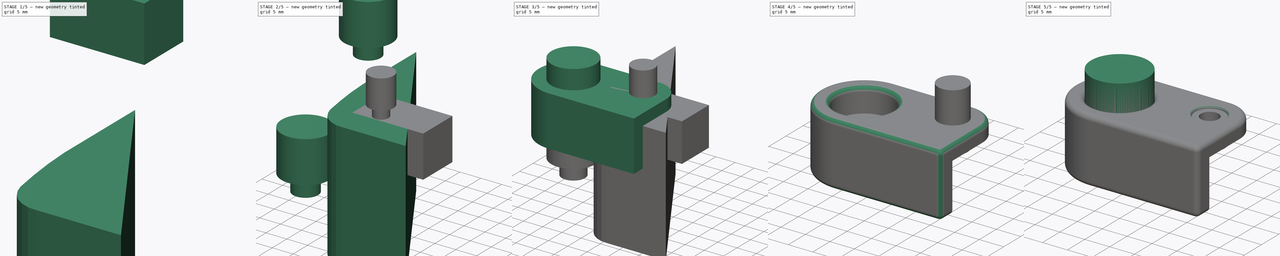
[diagram: build sequence overview — one tinted view per stage of 5, left to right]
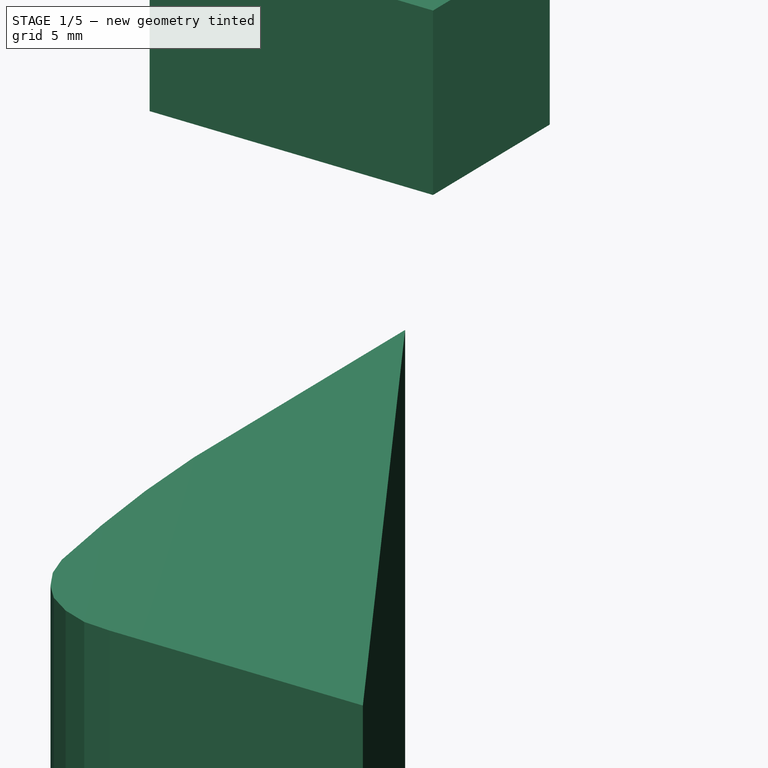
[diagram: stage 1 of 5 — iso view after this stage's code; geometry added in this stage tinted green]
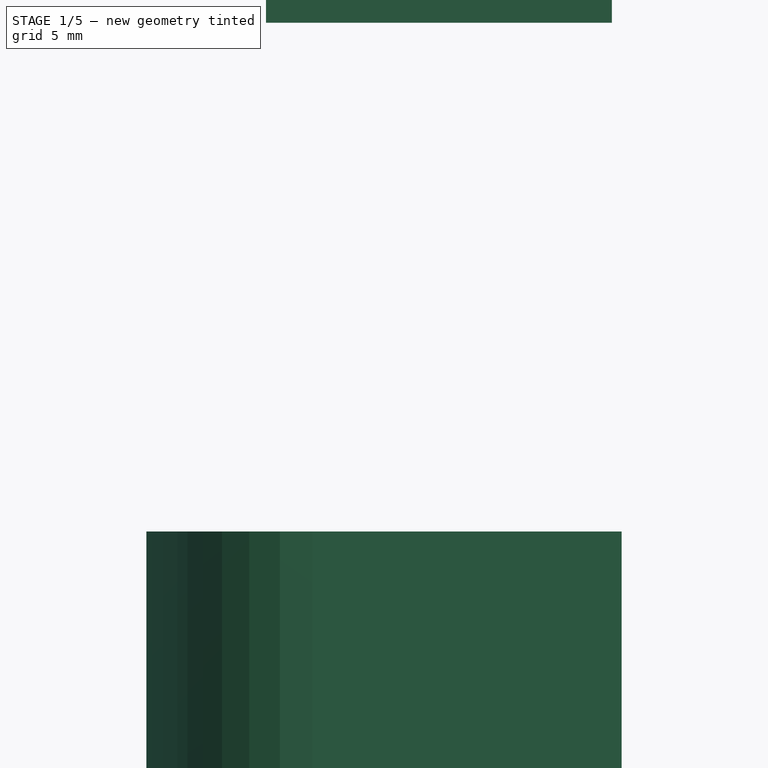
[diagram: stage 1 of 5 — front view after this stage's code; geometry added in this stage tinted green]
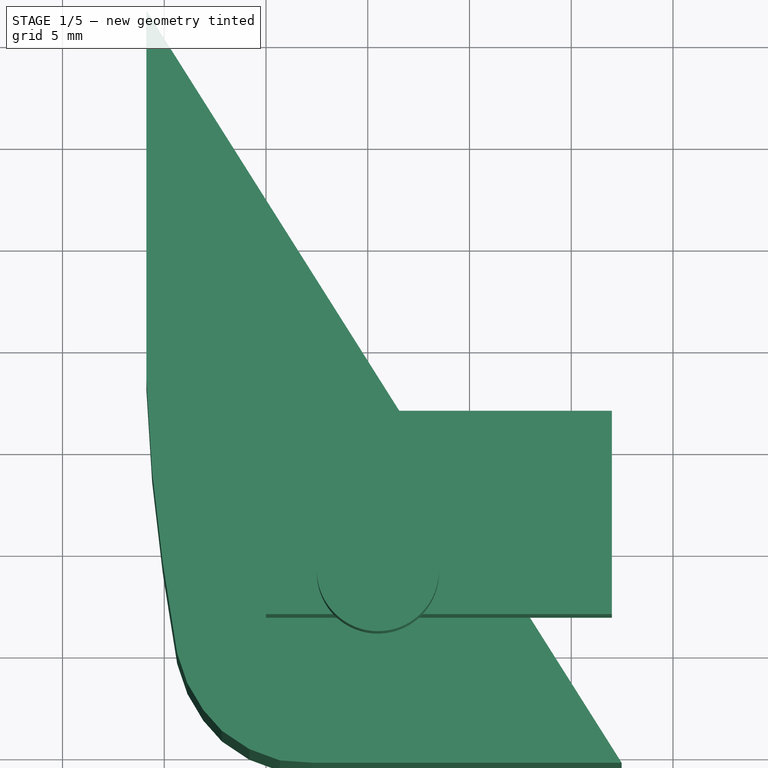
[diagram: stage 1 of 5 — top view after this stage's code; geometry added in this stage tinted green]
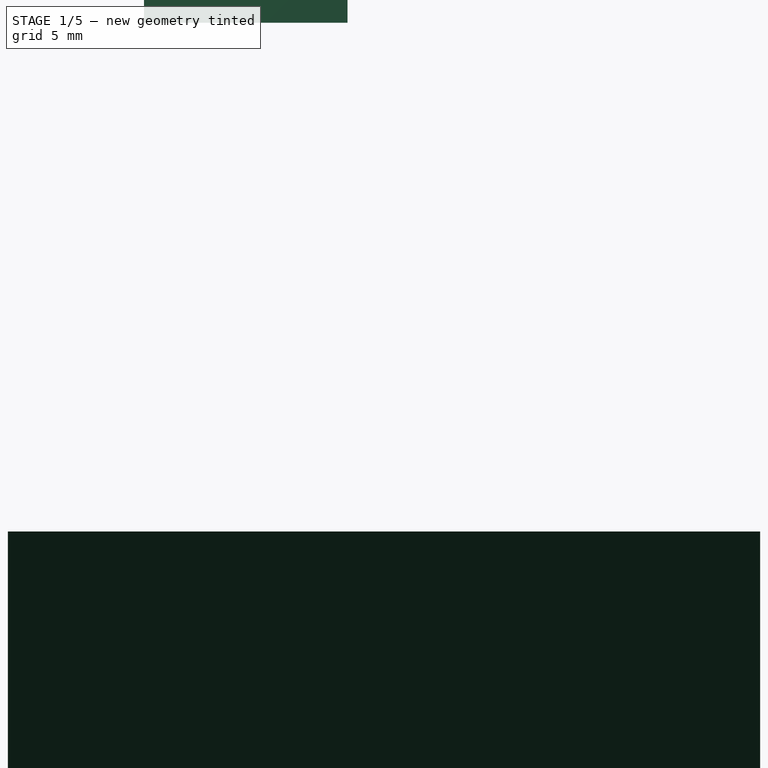
[diagram: stage 1 of 5 — right view after this stage's code; geometry added in this stage tinted green]
FCSTD DOCUMENT  (FreeCAD 0.20R29410 (Git))
Label: antennaHolder2022_11_15
License: All rights reserved
LicenseURL: http://en.wikipedia.org/wiki/All_rights_reserved
objects: Part::Cylinder×10, Part::MultiFuse×8, Part::Fillet×5, Part::Cut×3, Part::Box×2, Part::Feature×1, Sketcher::SketchObject×1, PartDesign::Pad×1, PartDesign::AdditiveBox×1, PartDesign::Body×1
note: 35 computed .brp shape members not serialized (recipe doc carries the construction recipe); baked Part::Feature solids carry a one-line shape summary decoded from their .brp

FEATURE [Sketcher::SketchObject] Sketch
  FullyConstrained = true
  MapMode = 5
  Support = -> [XY_Plane]
  sketch-geometry (24):
    g0: GeomPoint X=-15.8769 Y=6.2818 Z=0
    g1: GeomPoint X=-15.8769 Y=-11.8438 Z=0
    g2: GeomPoint X=-15.5941 Y=-16.3746 Z=0
    g3: GeomPoint X=-15.0711 Y=-20.8575 Z=0
    g4: GeomPoint X=-14.3647 Y=-25.3051 Z=0
    g5: GeomPoint X=-13.8626 Y=-26.7835 Z=0
    g6: GeomPoint X=-13.0815 Y=-28.0945 Z=0
    g7: GeomPoint X=-12.161 Y=-29.1266 Z=0
    g8: GeomPoint X=-10.8221 Y=-30.0192 Z=0
    g9: GeomPoint X=-9.31585 Y=-30.5771 Z=0
    g10: GeomPoint X=-7.72589 Y=-30.6886 Z=0
    g11: GeomPoint X=7.47631 Y=-30.6886 Z=0
    g12: LineSegment StartX=-15.5941 StartY=-16.3746 StartZ=0 EndX=-15.0711 EndY=-20.8575 EndZ=0
    g13: LineSegment StartX=-15.0711 StartY=-20.8575 StartZ=0 EndX=-14.3647 EndY=-25.3051 EndZ=0
    g14: LineSegment StartX=-14.3647 StartY=-25.3051 StartZ=0 EndX=-13.8626 EndY=-26.7835 EndZ=0
    g15: LineSegment StartX=-13.8626 StartY=-26.7835 StartZ=0 EndX=-13.0815 EndY=-28.0945 EndZ=0
    g16: LineSegment StartX=-13.0815 StartY=-28.0945 StartZ=0 EndX=-12.161 EndY=-29.1266 EndZ=0
    g17: LineSegment StartX=-12.161 StartY=-29.1266 StartZ=0 EndX=-10.8221 EndY=-30.0192 EndZ=0
    g18: LineSegment StartX=-10.8221 StartY=-30.0192 StartZ=0 EndX=-9.31585 EndY=-30.5771 EndZ=0
    g19: LineSegment StartX=-9.31585 StartY=-30.5771 StartZ=0 EndX=-7.72589 EndY=-30.6886 EndZ=0
    g20: LineSegment StartX=7.47631 StartY=-30.6886 StartZ=0 EndX=-7.72589 EndY=-30.6886 EndZ=0
    g21: LineSegment StartX=-15.8769 StartY=-11.8438 StartZ=0 EndX=-15.5941 EndY=-16.3746 EndZ=0
    g22: LineSegment StartX=-15.8769 StartY=-11.8438 StartZ=0 EndX=-15.8769 EndY=6.2818 EndZ=0
    g23: LineSegment StartX=-15.8769 StartY=6.2818 StartZ=0 EndX=7.47631 EndY=-30.6886 EndZ=0
  constraints (54):
    c: Coincident(g12,g2)
    c: Coincident(g12,g3)
    c: Coincident(g13,g12)
    c: Coincident(g13,g4)
    c: Coincident(g14,g13)
    c: Coincident(g14,g5)
    c: Coincident(g15,g14)
    c: Coincident(g15,g6)
    c: Coincident(g16,g15)
    c: Coincident(g16,g7)
    c: Coincident(g17,g16)
    c: Coincident(g17,g8)
    c: Coincident(g18,g9)
    c: Coincident(g19,g10)
    c: Coincident(g20,g11)
    c: Coincident(g20,g19)
    c: Coincident(g21,g12)
    c: Coincident(g22,g21)
    c: Coincident(g22,g0)
    c: Coincident(g23,g20)
    c: DistanceX(g0,g11) = 23.3532
    c: DistanceY(g0,g11) = -36.9704
    c: DistanceX(g1,g11) = 23.3532
    c: DistanceY(g1,g11) = -18.8449
    c: DistanceX(g2,g11) = 23.0704
    c: DistanceY(g2,g11) = -14.3141
    c: DistanceX(g3,g11) = 22.5474
    c: DistanceY(g3,g11) = -9.83113
    c: DistanceX(g4,g11) = 21.841
    c: DistanceY(g4,g11) = -5.38353
    c: DistanceX(g5,g11) = 21.3389
    c: DistanceY(g5,g11) = -3.90515
    c: DistanceX(g6,g11) = 20.5578
    c: DistanceY(g6,g11) = -2.59414
    c: DistanceX(g7,g11) = 19.6373
    c: DistanceY(g7,g11) = -1.56206
    c: DistanceX(g8,g11) = 18.2984
    c: DistanceY(g8,g11) = -0.669455
    c: DistanceX(g9,g11) = 16.7922
    c: DistanceY(g9,g11) = -0.111576
    c: DistanceX(g10,g11) = 15.2022
    c: DistanceY(g10,g11) = 0
    c: DistanceX(g-1) = 0
    c: DistanceY(g-1) = 0
    c: DistanceX(g22) = -15.8769
    c: DistanceY(g22) = 6.2818
    c: DistanceX(g18,g22) = -5.05474
    c: DistanceY(g18,g22) = 36.301
    c: DistanceX(g19,g22) = -6.56102
    c: DistanceY(g19,g22) = 36.8589
    c: DistanceX(g21,g22) = 0
    c: DistanceY(g21,g22) = 18.1256
    c: DistanceX(g23,g22) = 0
    c: DistanceY(g23,g22) = 0
FEATURE [PartDesign::Pad] Pad
  Direction = (0,0,1)
  Length = 30
  Length2 = 10
  Profile = -> Sketch
  ReferenceAxis = -> Sketch [N_Axis]
  Type = 0
FEATURE [PartDesign::AdditiveBox] Box002
  AttacherType = Attacher::AttachEngine3D
  BaseFeature = -> Pad
  Height = 10
  Length = 10
  Width = 10
FEATURE [Part::Cylinder] Cylinder020  label="m3Cut"
  Angle = 360
  AttacherType = Attacher::AttachEngine3D
  FirstAngle = 0
  Height = 7
  Placement = pos=(-4.5,-22,62.5) rot=(0,0,1;0rad)
  Radius = 1.8
  SecondAngle = 0
FEATURE [Part::Cylinder] Cylinder021  label="m3Cut001"
  Angle = 360
  AttacherType = Attacher::AttachEngine3D
  FirstAngle = 0
  Height = 7
  Placement = pos=(-4.5,-22,67.5) rot=(0,0,1;0rad)
  Radius = 3
  SecondAngle = 0
FEATURE [Part::Box] Box003  label="Cube001"
  AttacherType = Attacher::AttachEngine3D
  Height = 10
  Length = 17
  Placement = pos=(-10,-24,55) rot=(0,0,1;0rad)
  Width = 10
FEATURE [Part::MultiFuse] Fusion009
  Shapes = -> [Cylinder021,Cylinder020]
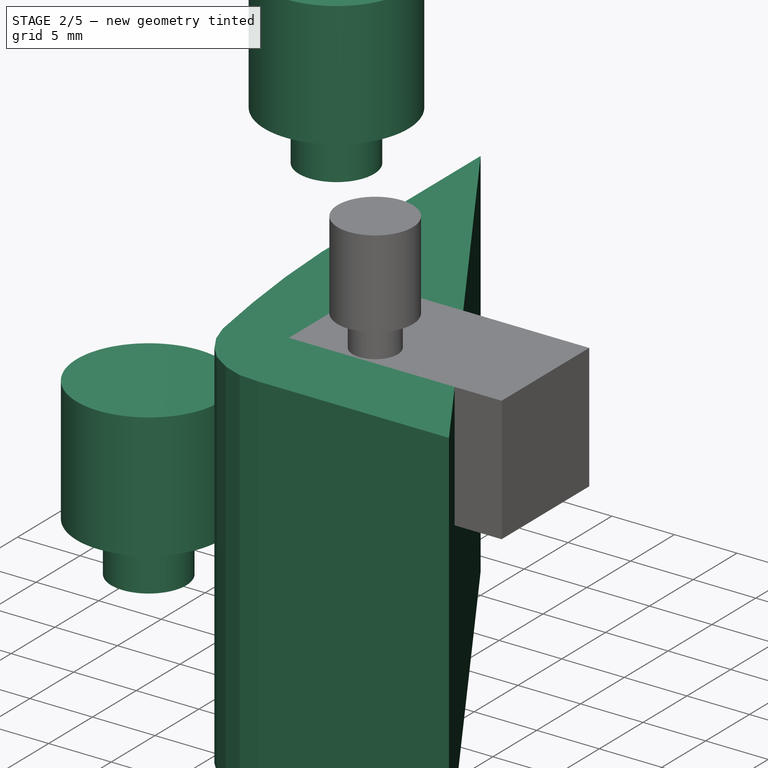
[diagram: stage 2 of 5 — iso view after this stage's code; geometry added in this stage tinted green]
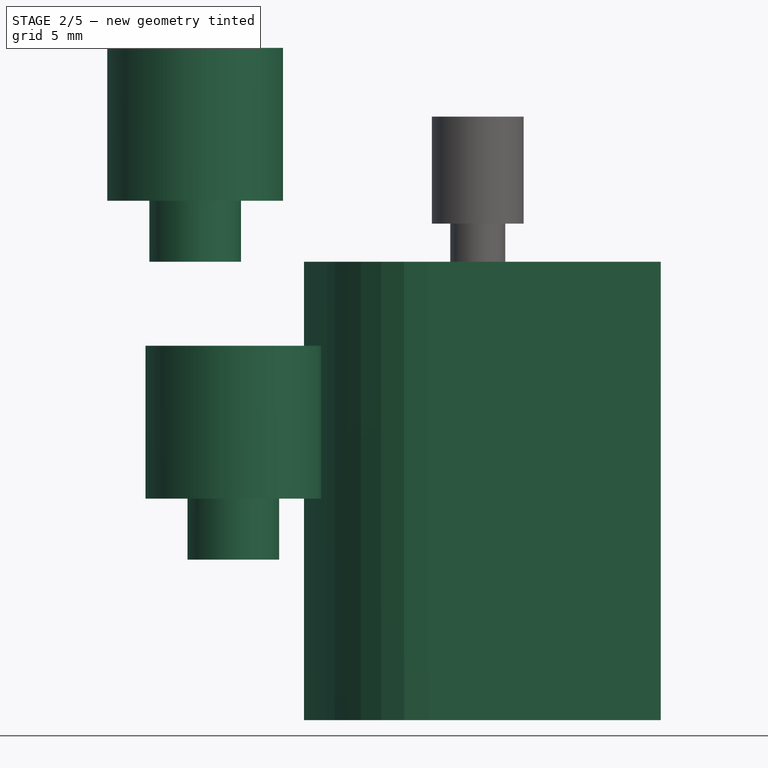
[diagram: stage 2 of 5 — front view after this stage's code; geometry added in this stage tinted green]
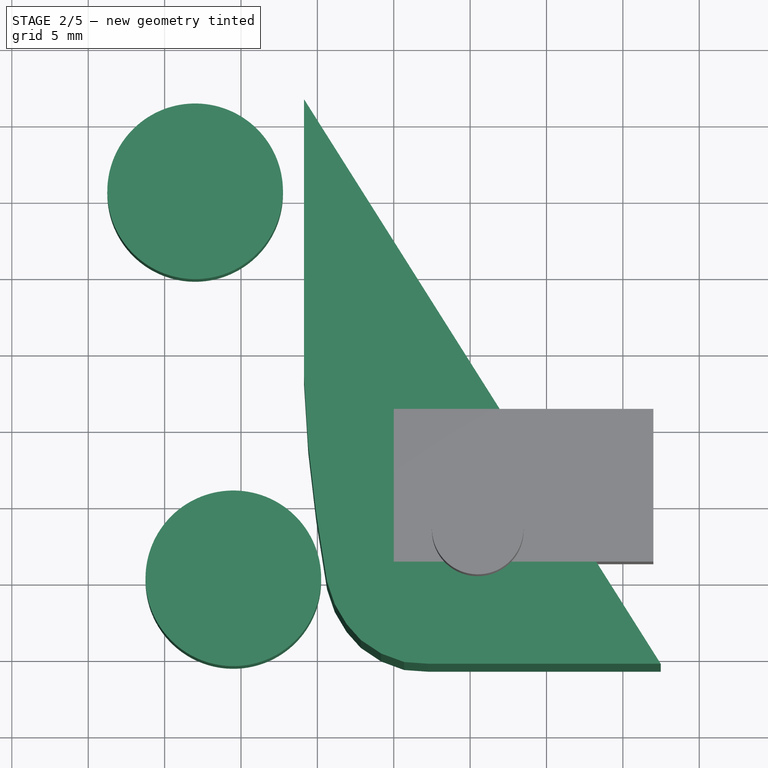
[diagram: stage 2 of 5 — top view after this stage's code; geometry added in this stage tinted green]
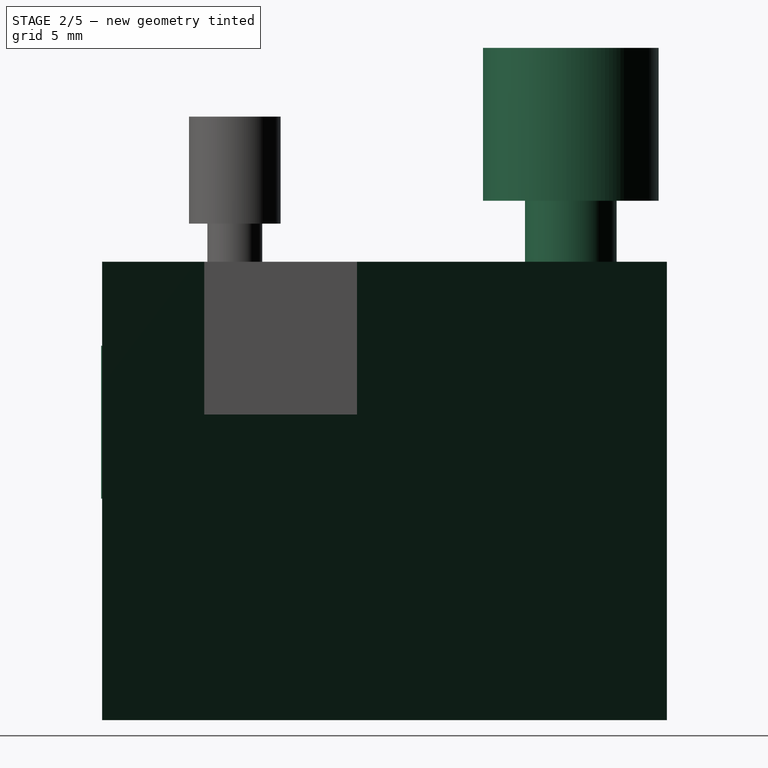
[diagram: stage 2 of 5 — right view after this stage's code; geometry added in this stage tinted green]
FEATURE [Part::Cylinder] Cylinder015  label="antennaIn002"
  Angle = 360
  AttacherType = Attacher::AttachEngine3D
  FirstAngle = 0
  Height = 10
  Placement = pos=(-23,0,65) rot=(0,0,1;0rad)
  Radius = 3
  SecondAngle = 0
FEATURE [Part::Cylinder] Cylinder016  label="antennaIn003"
  Angle = 360
  AttacherType = Attacher::AttachEngine3D
  FirstAngle = 0
  Height = 10
  Placement = pos=(-23,0,69) rot=(0,0,1;0rad)
  Radius = 5.75
  SecondAngle = 0
FEATURE [Part::Cylinder] Cylinder017  label="antennaIn004"
  Angle = 360
  AttacherType = Attacher::AttachEngine3D
  FirstAngle = 0
  Height = 10
  Placement = pos=(-23,0,65) rot=(0,0,1;0rad)
  Radius = 3
  SecondAngle = 0
FEATURE [Part::Cylinder] Cylinder018  label="antennaIn005"
  Angle = 360
  AttacherType = Attacher::AttachEngine3D
  FirstAngle = 0
  Height = 10
  Placement = pos=(-23,0,69) rot=(0,0,1;0rad)
  Radius = 5.75
  SecondAngle = 0
FEATURE [Part::MultiFuse] Fusion005
  Placement = pos=(2.5,-25,-19.5) rot=(0,0,1;0rad)
  Shapes = -> [Cylinder017,Cylinder018]
FEATURE [Part::MultiFuse] Fusion007  label="firstCuts"
  Shapes = -> [Box003,Body]
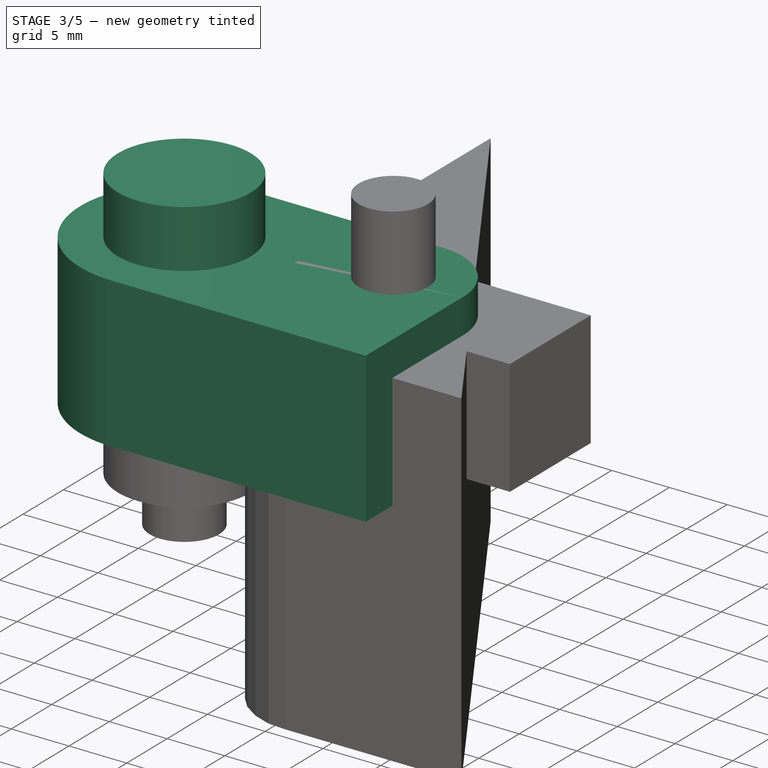
[diagram: stage 3 of 5 — iso view after this stage's code; geometry added in this stage tinted green]
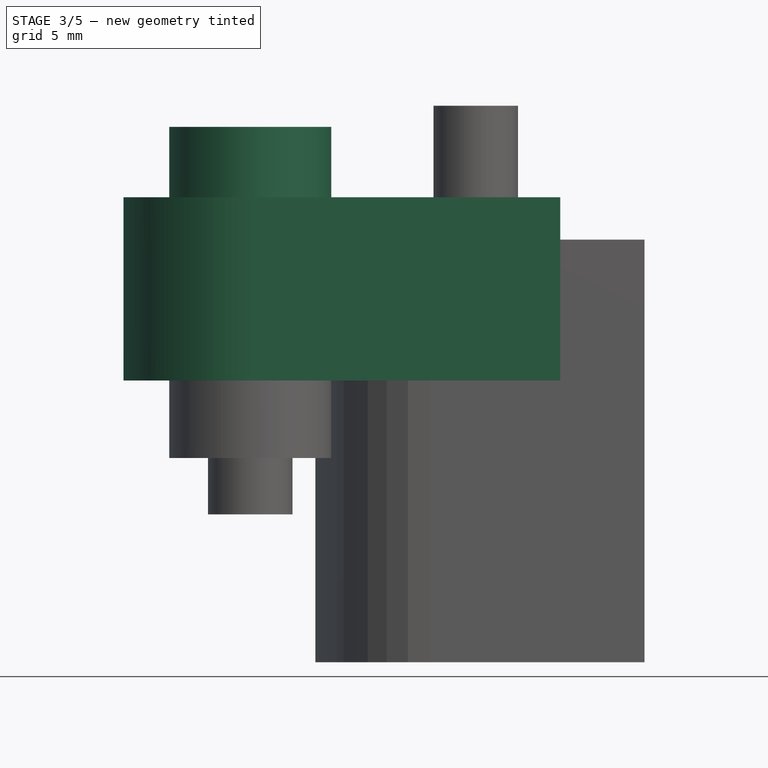
[diagram: stage 3 of 5 — front view after this stage's code; geometry added in this stage tinted green]
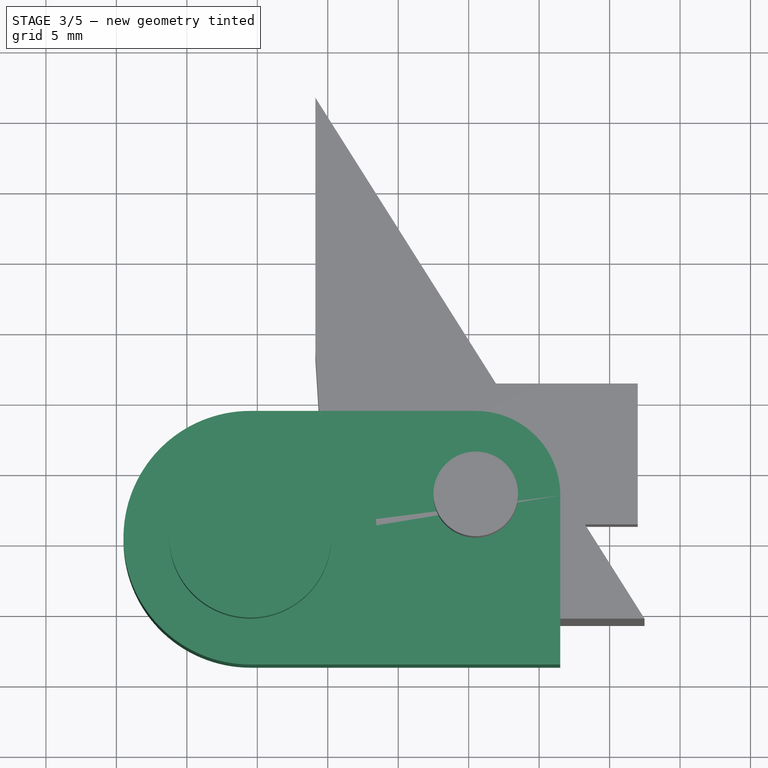
[diagram: stage 3 of 5 — top view after this stage's code; geometry added in this stage tinted green]
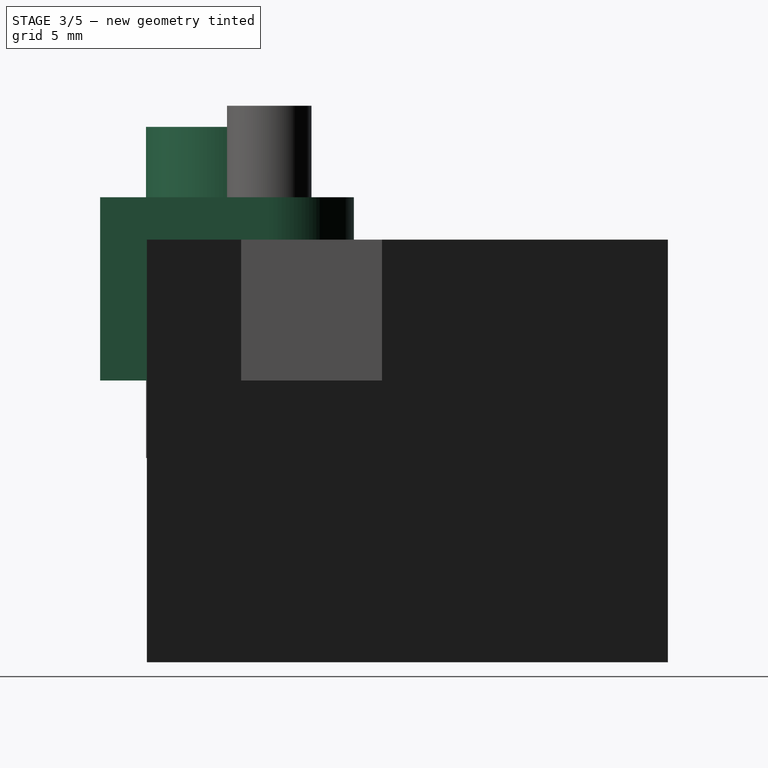
[diagram: stage 3 of 5 — right view after this stage's code; geometry added in this stage tinted green]
FEATURE [Part::MultiFuse] Fusion004
  Placement = pos=(2.5,-25,-6) rot=(0,0,1;0rad)
  Shapes = -> [Cylinder015,Cylinder016]
FEATURE [Part::Box] Box  label="Cube"
  AttacherType = Attacher::AttachEngine3D
  Height = 13
  Length = 22
  Placement = pos=(-20.5,-34,56) rot=(0,0,1;0rad)
  Width = 18
FEATURE [Part::Cylinder] Cylinder
  Angle = 360
  AttacherType = Attacher::AttachEngine3D
  FirstAngle = 0
  Height = 13
  Placement = pos=(-20.5,-25,56) rot=(0,0,1;0rad)
  Radius = 9
  SecondAngle = 0
FEATURE [Part::MultiFuse] Fusion
  Placement = pos=(0,0,-1) rot=(0,0,1;0rad)
  Shapes = -> [Cylinder,Box]
FEATURE [PartDesign::Body] Body
  Group = -> [Sketch,Pad,Box002]
  Origin = -> Origin
  Placement = pos=(0,0,35) rot=(0,0,1;0rad)
  Tip = -> Box002
FEATURE [Part::Fillet] Fillet
  Base = -> Fusion
  Edges = 1 edges r=6: [Edge8]
FEATURE [Part::MultiFuse] Fusion006  label="antennaCuts"
  Shapes = -> [Fusion004,Fusion005]
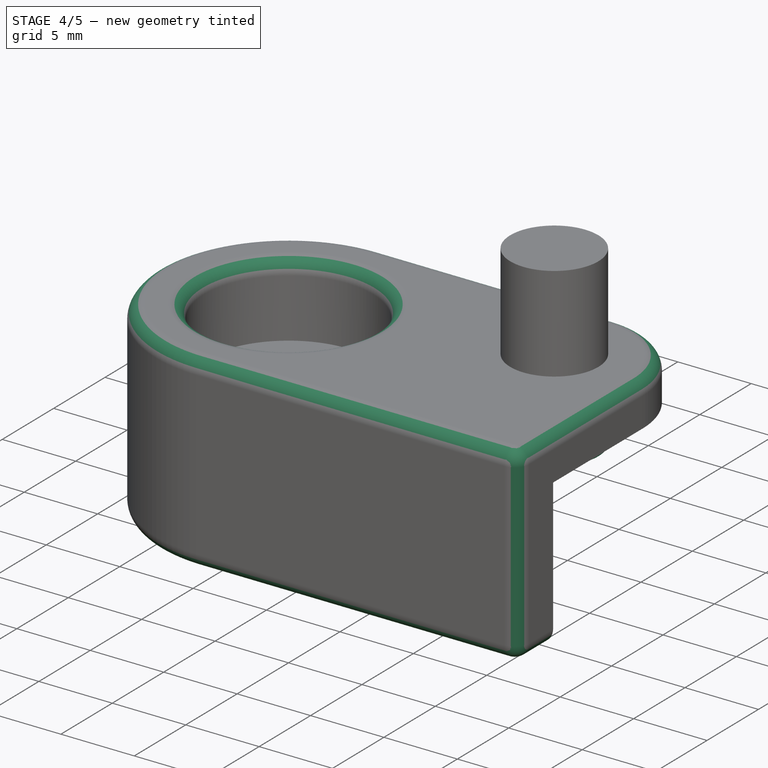
[diagram: stage 4 of 5 — iso view after this stage's code; geometry added in this stage tinted green]
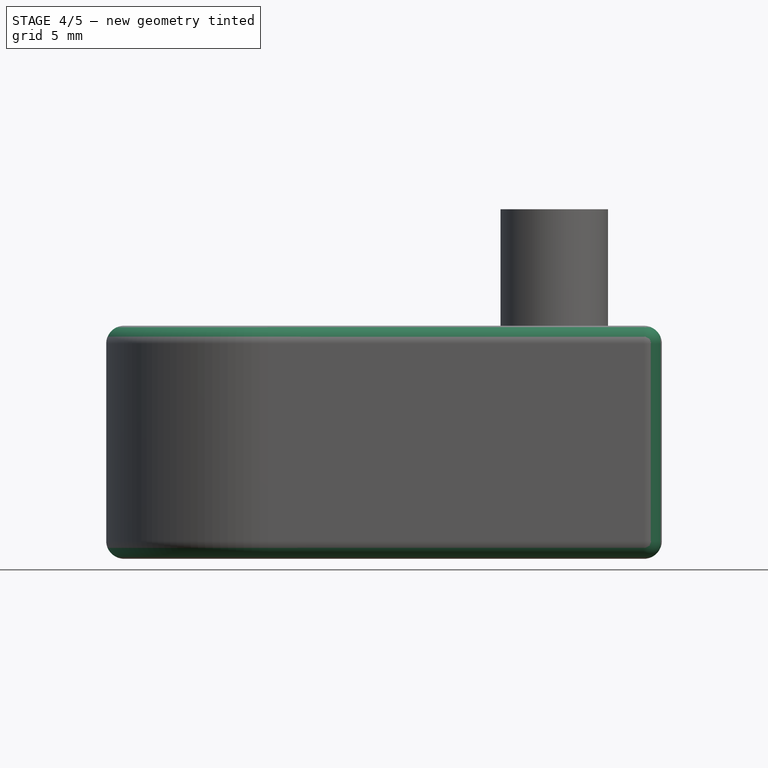
[diagram: stage 4 of 5 — front view after this stage's code; geometry added in this stage tinted green]
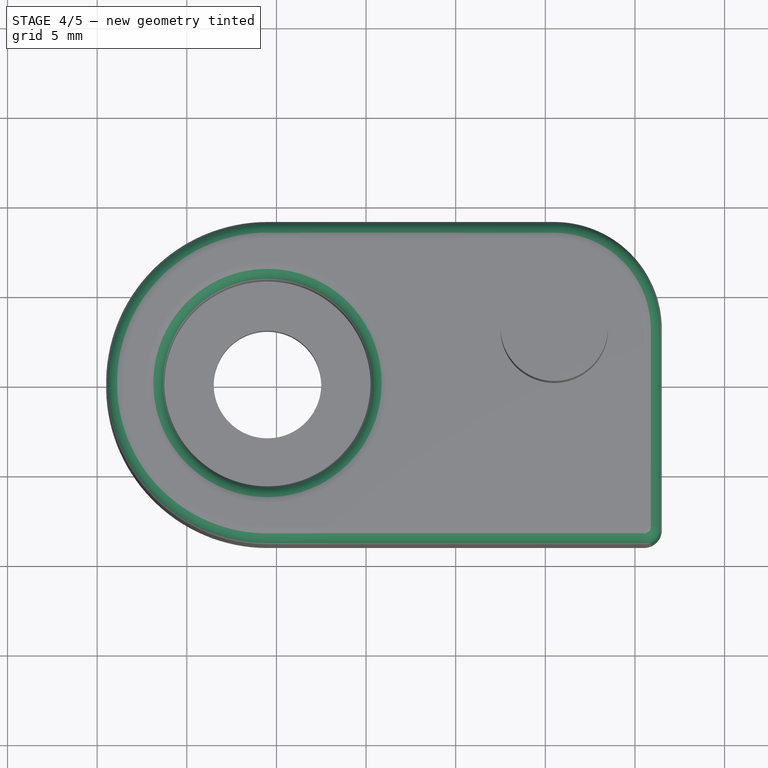
[diagram: stage 4 of 5 — top view after this stage's code; geometry added in this stage tinted green]
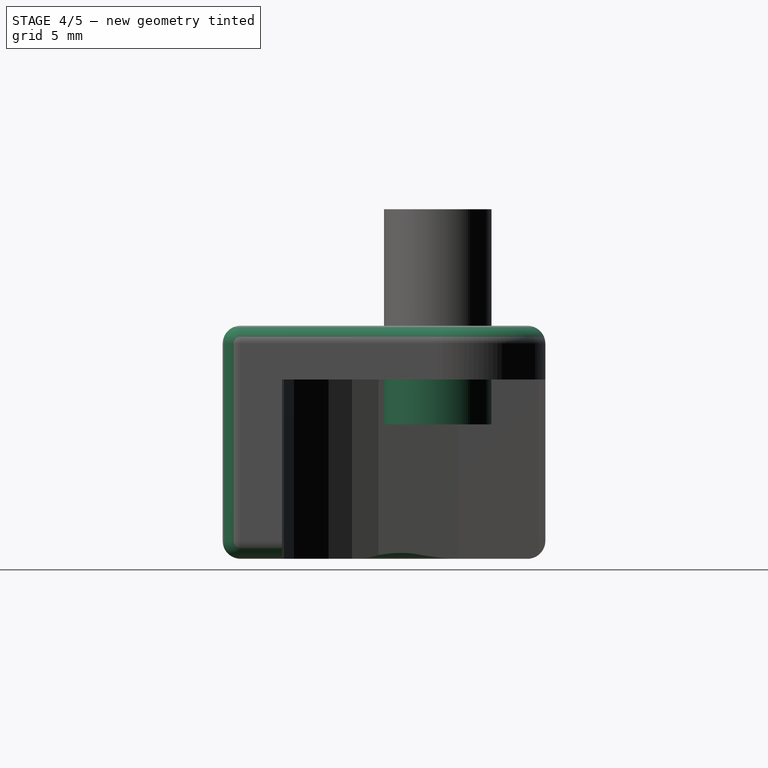
[diagram: stage 4 of 5 — right view after this stage's code; geometry added in this stage tinted green]
FEATURE [Part::Fillet] Fillet001
  Base = -> Fillet
  Edges = 9 edges r=1: [Edge1,Edge4,Edge5,Edge8,Edge13,Edge14,Edge15,Edge17,Edge18]
FEATURE [Part::Cut] Cut
  Base = -> Fillet001
  Tool = -> Fusion006
FEATURE [Part::Fillet] Fillet002
  Base = -> Cut
  Edges = 2 edges r=1: [Edge68,Edge69]
FEATURE [Part::Fillet] Fillet003
  Base = -> Fillet002
  Edges = 3 edges r=1: [Edge75,Edge76,Edge79]
FEATURE [Part::Cylinder] Cylinder019  label="m3_5Add"
  Angle = 360
  AttacherType = Attacher::AttachEngine3D
  FirstAngle = 0
  Height = 3
  Placement = pos=(-4.5,-22,62.5) rot=(0,0,1;0rad)
  Radius = 3
  SecondAngle = 0
FEATURE [Part::Cut] Cut001
  Base = -> Fillet003
  Tool = -> Fusion007
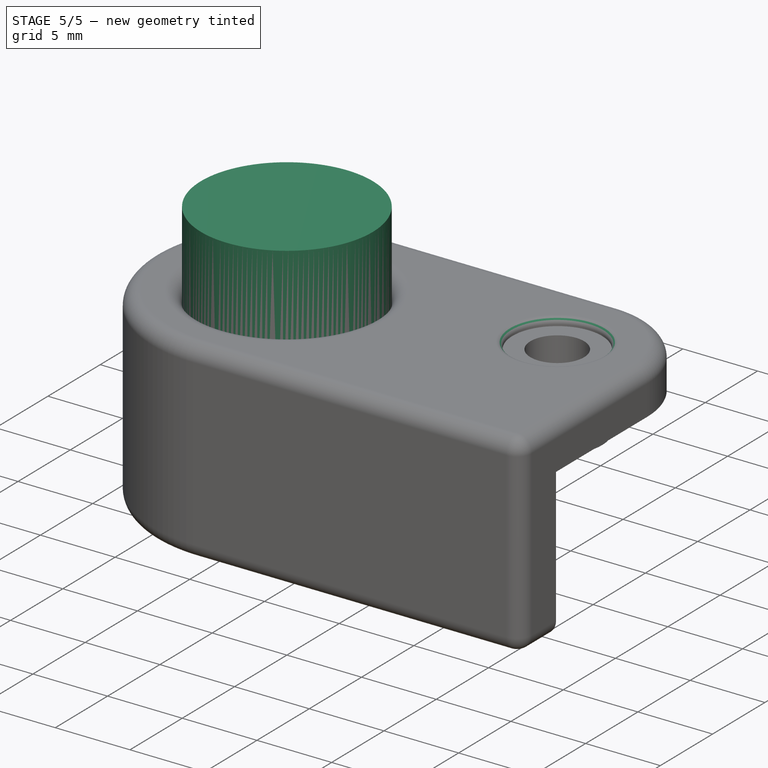
[diagram: stage 5 of 5 — iso view after this stage's code; geometry added in this stage tinted green]
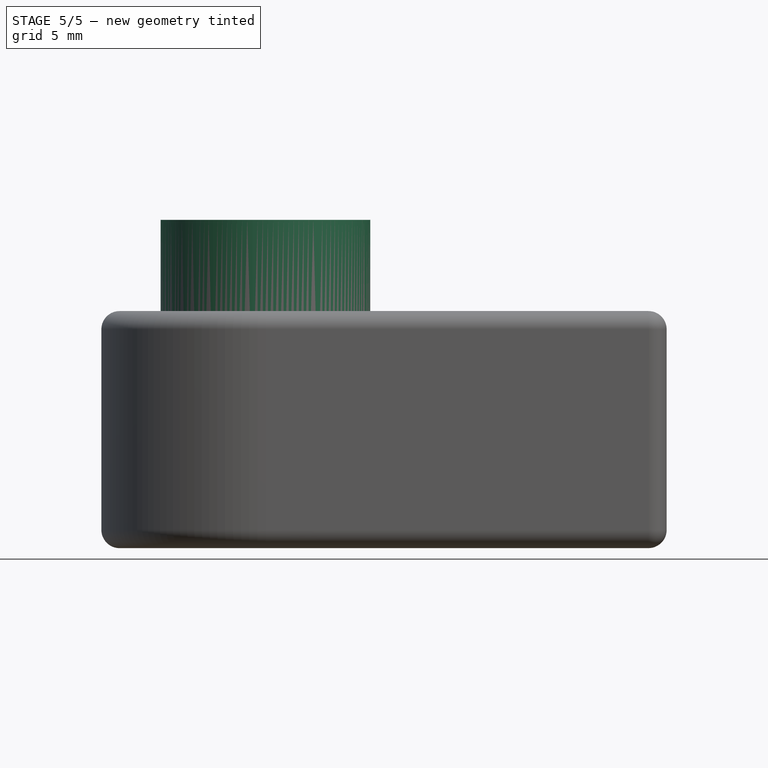
[diagram: stage 5 of 5 — front view after this stage's code; geometry added in this stage tinted green]
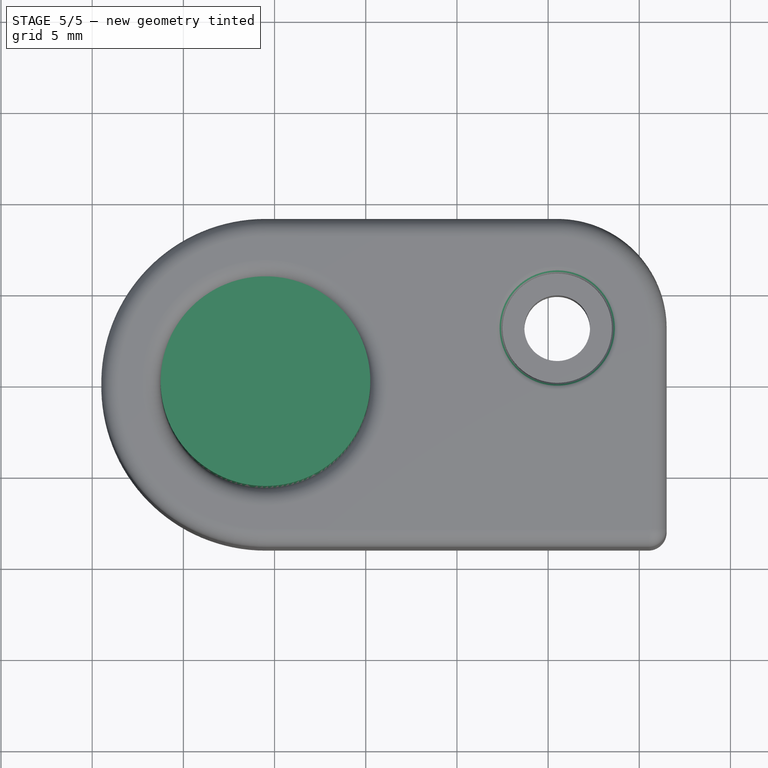
[diagram: stage 5 of 5 — top view after this stage's code; geometry added in this stage tinted green]
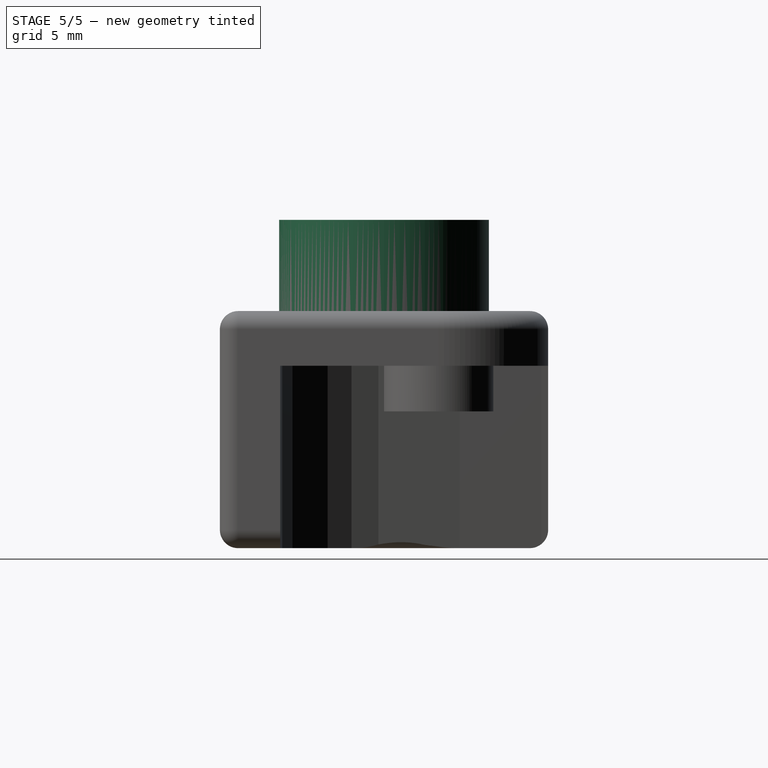
[diagram: stage 5 of 5 — right view after this stage's code; geometry added in this stage tinted green]
FEATURE [Part::Feature] Feature  label="EX-64-002"
  Placement = pos=(73,0,0.5) rot=(0,0,1;0rad)
  shape: bbox 178.8 x 63.35 x 129.6 mm, 1628 faces, 33 solids (baked)
FEATURE [Part::Cylinder] Cylinder013  label="antennaIn"
  Angle = 360
  AttacherType = Attacher::AttachEngine3D
  FirstAngle = 0
  Height = 10
  Placement = pos=(-23,0,65) rot=(0,0,1;0rad)
  Radius = 3
  SecondAngle = 0
FEATURE [Part::Cylinder] Cylinder014  label="antennaIn001"
  Angle = 360
  AttacherType = Attacher::AttachEngine3D
  FirstAngle = 0
  Height = 10
  Placement = pos=(-23,0,69) rot=(0,0,1;0rad)
  Radius = 5.75
  SecondAngle = 0
FEATURE [Part::MultiFuse] Fusion003
  Placement = pos=(2.5,-25,-6) rot=(0,0,1;0rad)
  Shapes = -> [Cylinder013,Cylinder014]
FEATURE [Part::MultiFuse] Fusion008
  Shapes = -> [Cylinder019,Cut001]
FEATURE [Part::Cut] Cut002
  Base = -> Fusion008
  Tool = -> Fusion009
FEATURE [Part::Fillet] Fillet004
  Base = -> Cut002
  Edges = 1 edges r=0.4: [Edge105]
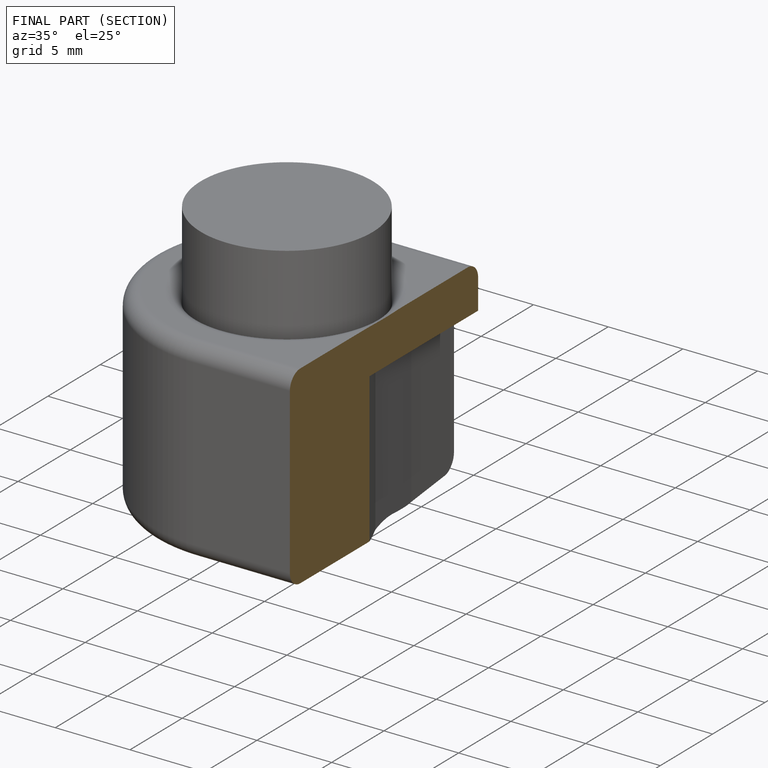
[diagram: finished part — half-section view (interior)]
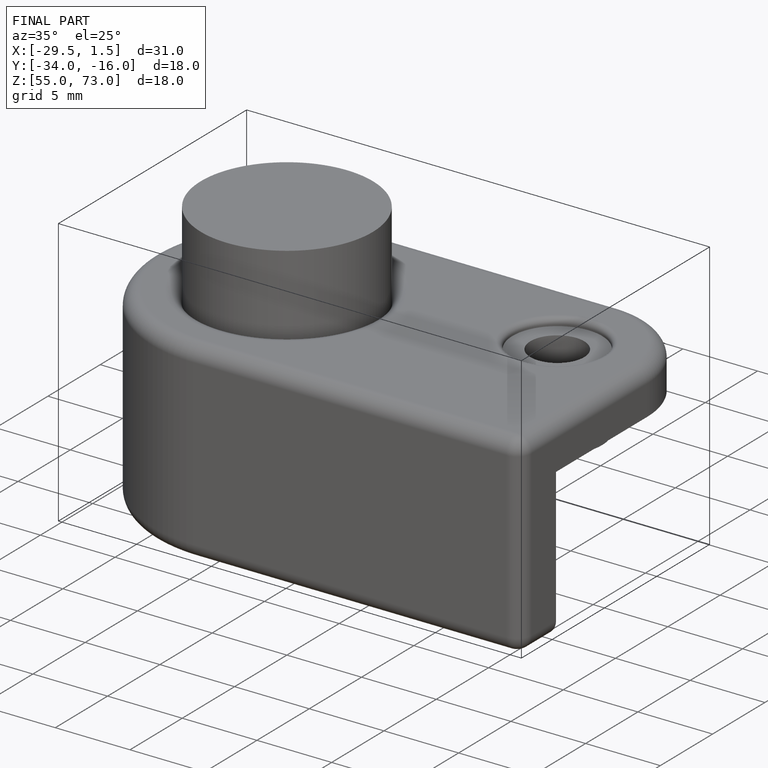
[diagram: finished part — iso view with bounding-box wireframe]
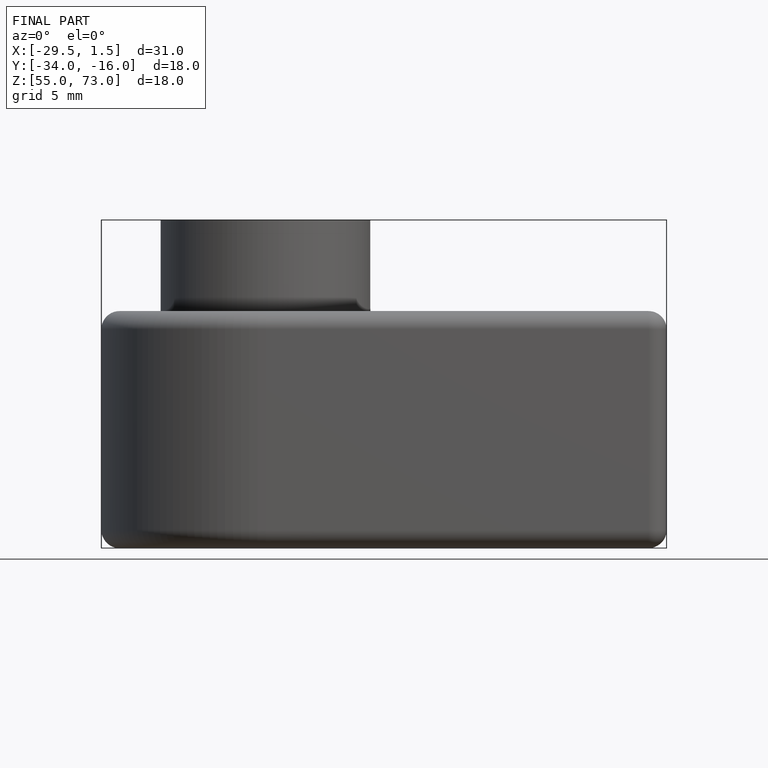
[diagram: finished part — front view with bounding-box wireframe]
